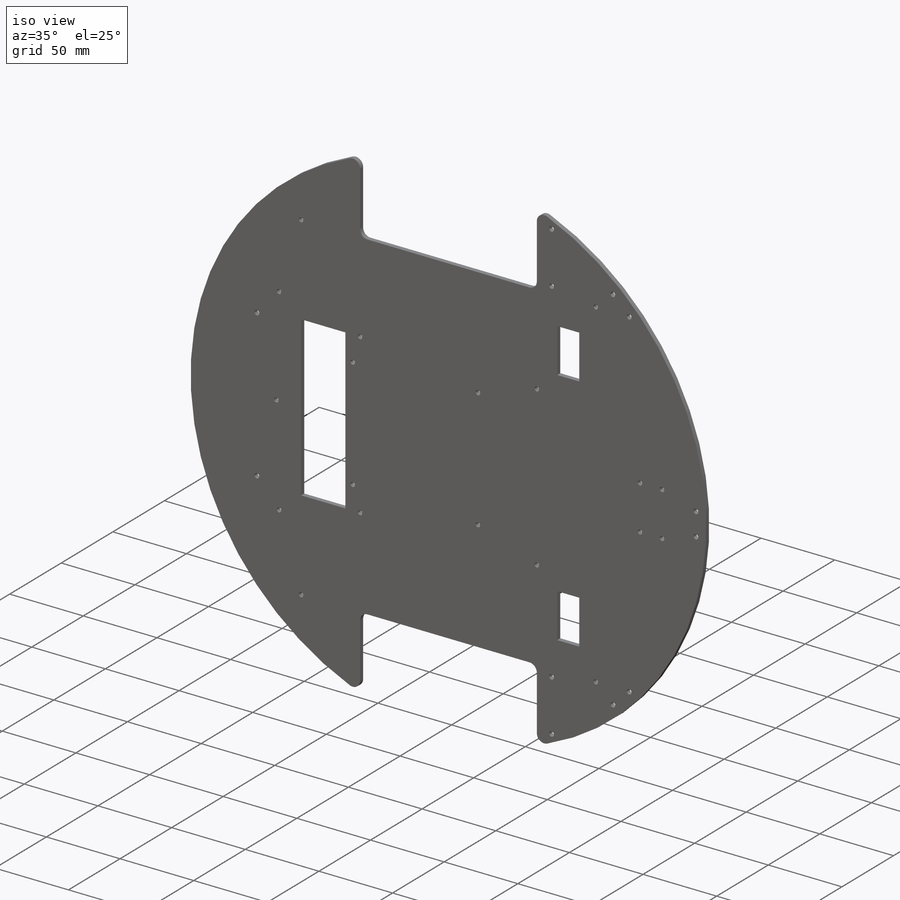
[diagram: iso view]
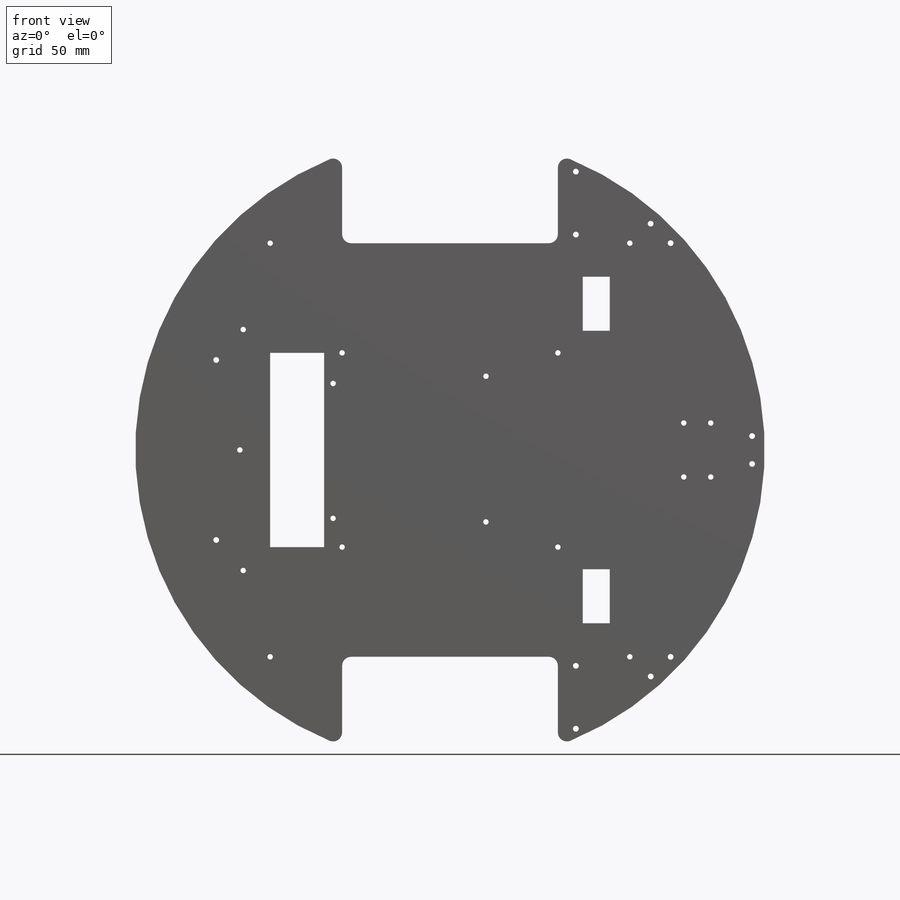
[diagram: front view]
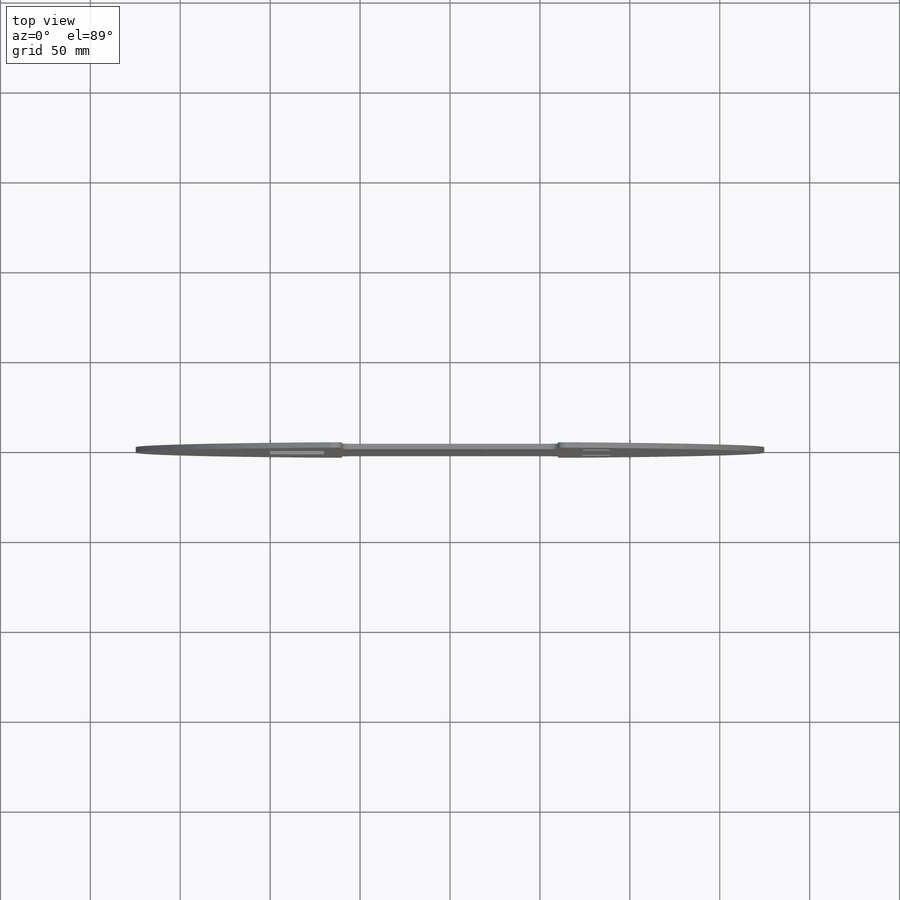
[diagram: top view]
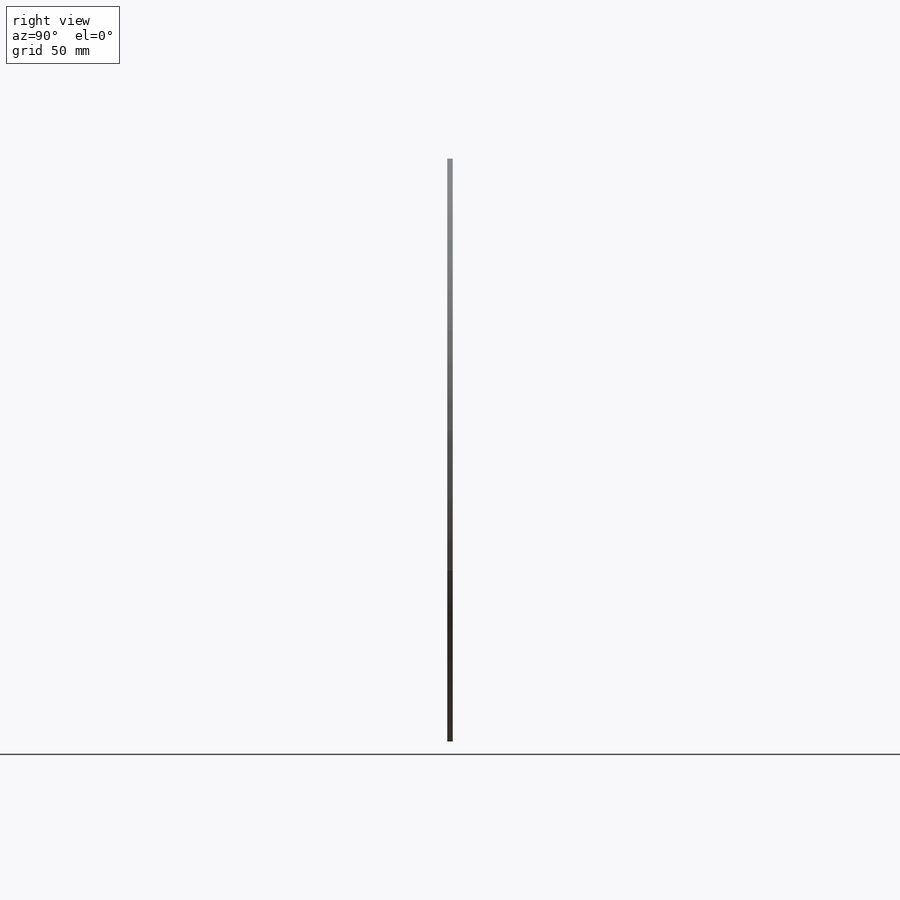
[diagram: right view]
SOLIDWORKS PART (.sldprt)
format: sldprt  version: not decoded by parser v0  size: 556,032 bytes
history: native  units: mm
features: sketch x11, cut_extrude x10, plane x3, fillet x3, material x1, extrude x1 + 2 further entries (+8 scaffold rows collapsed)
feature tree (39):
  scaffold x8  (default folders/planes/origin — collapsed)
  material  "ｱｸﾘﾙ (中-上級の耐衝撃性)"
  "ｻｰﾌｪｽ ﾎﾞﾃﾞｨ"
  "ｿﾘｯﾄﾞ ﾎﾞﾃﾞｨ"
  plane  "正面"
  plane  "平面"
  plane  "右側面"
  sketch  "ｽｹｯﾁ1"  dims[D1=350.0mm]
  extrude  "ﾎﾞｽ - 押し出し1"  Depth=3mm
  sketch  "ｽｹｯﾁ2"  dims[D1=115.0mm D2=60.0mm D3=60.0mm D4=60.0mm D5=115.0mm D6=60.0mm]
  cut_extrude  "ｶｯﾄ - 押し出し1"  Depth=3mm
  fillet  "ﾌｨﾚｯﾄ1"  Radius=5mm
  fillet  "ﾌｨﾚｯﾄ2"  Radius=5mm
  fillet  "ﾌｨﾚｯﾄ3"  Radius=5mm
  sketch  "ｽｹｯﾁ5"  dims[D3=3.0mm D4=3.0mm D5=3.0mm D6=3.0mm D1=100.0mm D2=100.0mm]
  cut_extrude  "ｶｯﾄ - 押し出し4"  Depth=3mm
  sketch  "ｽｹｯﾁ6"  dims[D3=3.0mm D4=3.0mm D5=3.0mm D6=3.0mm D1=120.0mm D2=108.0mm]
  cut_extrude  "ｶｯﾄ - 押し出し5"  Depth=3mm
  sketch  "ｽｹｯﾁ7"  dims[D1=10.0mm D2=108.0mm D3=30.0mm]
  cut_extrude  "ｶｯﾄ - 押し出し6"  Depth=3mm
  sketch  "ｽｹｯﾁ8"  dims[D4=3.0mm D5=3.0mm D6=3.0mm D1=15.0mm D2=67.0mm D3=67.0mm]
  cut_extrude  "ｶｯﾄ - 押し出し7"  Depth=3mm
  sketch  "ｽｹｯﾁ9"  dims[D7=3.0mm D8=3.0mm D9=3.0mm D10=3.0mm D1=5.0mm D2=37.0mm D3=38.0mm D4=85.0mm D5=41.0mm D6=40.0mm]
  cut_extrude  "ｶｯﾄ - 押し出し8"  Depth=10mm
  sketch  "ｽｹｯﾁ10"  dims[c1.D7=3.2mm c1.D8=3.2mm c1.D11=3.2mm c1.D12=3.2mm c1.D15=3.2mm c1.D16=3.2mm c1.D1=~152.23663mm c2.D1=45.8deg c2.D2=~152.23663mm c3.D2=45.8deg c3.D3=7.0mm c3.D4=7.0mm c3.D5=7.75mm c3.D6=7.75mm c3.D9=7.75mm c3.D10=7.75mm c3.D13=7.75mm c3.D14=7.75mm]
  cut_extrude  "ｶｯﾄ - 押し出し9"  Depth=10mm
  sketch  "ｽｹｯﾁ11"  dims[c1.D1=230.0mm c1.D2=115.0mm c2.D2=45.0deg c2.D3=~81.31728mm c3.D3=45.0deg c3.D4=30.0mm c3.D5=15.0mm c3.D6=15.0mm c3.D7=30.0mm]
  cut_extrude  "ｶｯﾄ - 押し出し10"  Depth=10mm
  sketch  "ｽｹｯﾁ13"  dims[D5=~4.00944mm D1=30.0mm D2=15.0mm D3=15.0mm D4=15.0mm]
  cut_extrude  "ｶｯﾄ - 押し出し12"  [1 undecoded]
  sketch  "ｽｹｯﾁ14"  dims[c1.D4=3.2mm c1.D5=3.2mm c1.D7=3.2mm c1.D8=3.2mm c1.D10=3.0mm c1.D12=3.2mm c1.D13=3.2mm c1.D1=10.0mm c1.D2=120.0mm c1.D3=120.0mm c1.D6=35.0mm c1.D9=35.0mm c2.D10=50.05mm c2.D11=50.05mm c2.D14=130.0mm]
  cut_extrude  "ｶｯﾄ - 押し出し14"  [1 undecoded]
decode coverage: 23 of 25 modeling features carry decoded parameters; 2 rows unclassified (native names shown)
note: ~ marks probable driven/reference dimensions
note: 2 parameter values undecoded
note: suppression state not decoded; provenance and decode notes live in map.json
